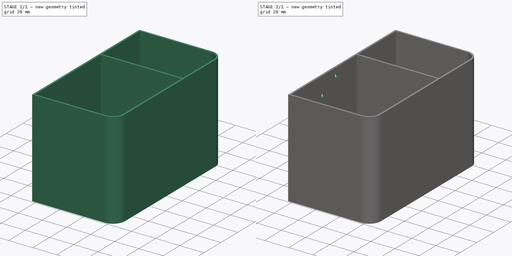
[diagram: build sequence overview — one tinted view per stage of 2, left to right]
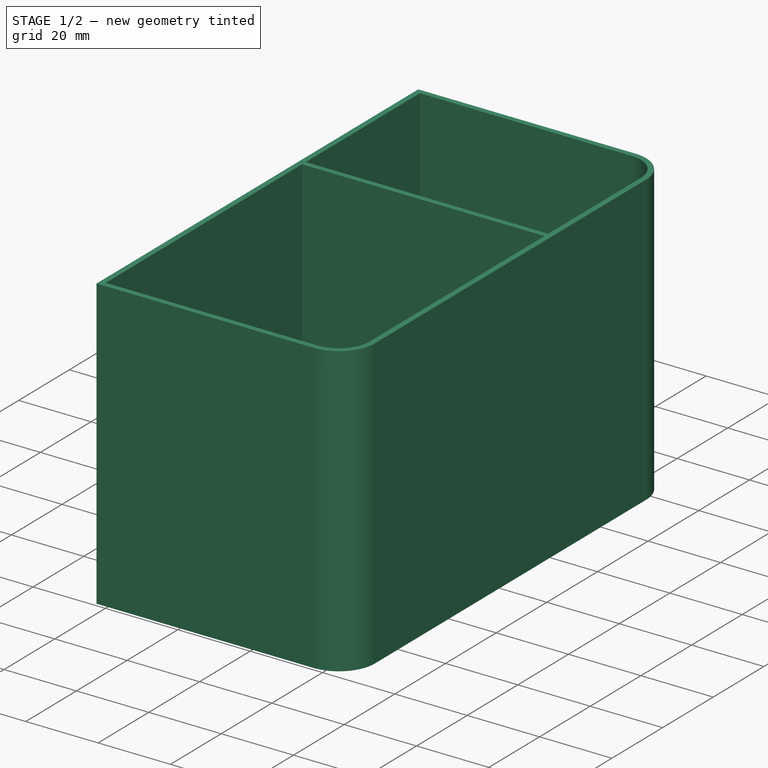
[diagram: stage 1 of 2 — iso view after this stage's code; geometry added in this stage tinted green]
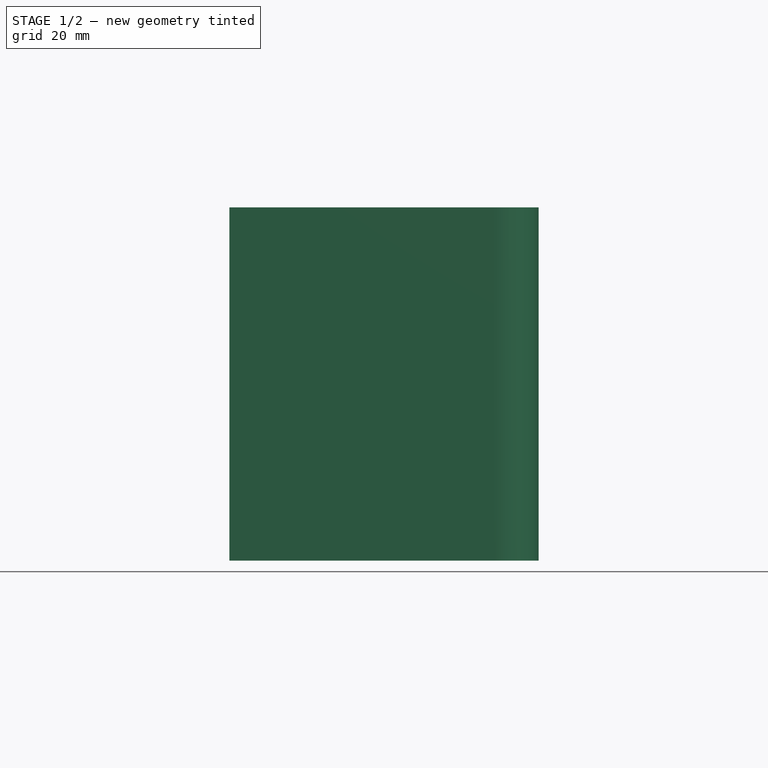
[diagram: stage 1 of 2 — front view after this stage's code; geometry added in this stage tinted green]
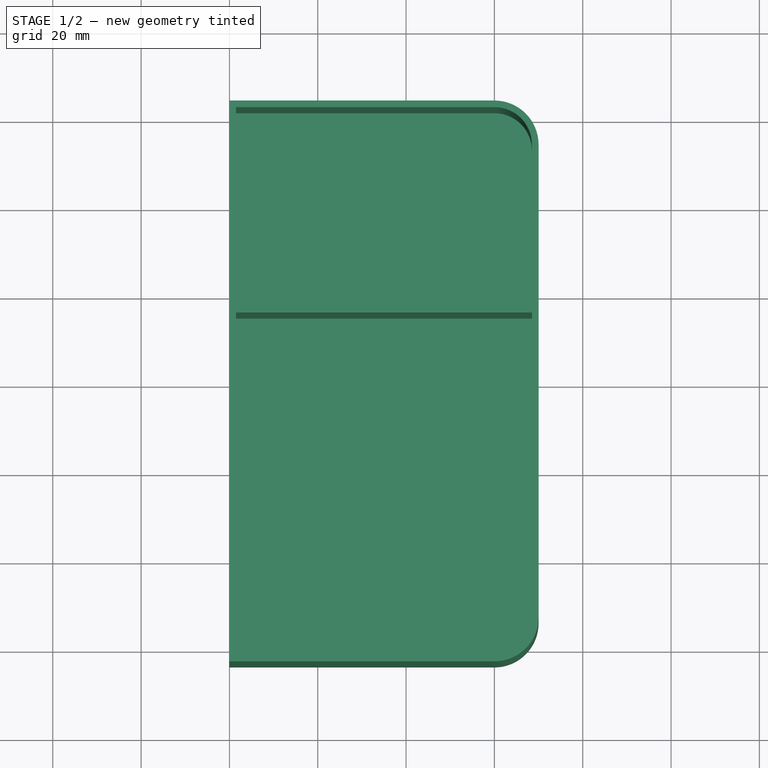
[diagram: stage 1 of 2 — top view after this stage's code; geometry added in this stage tinted green]
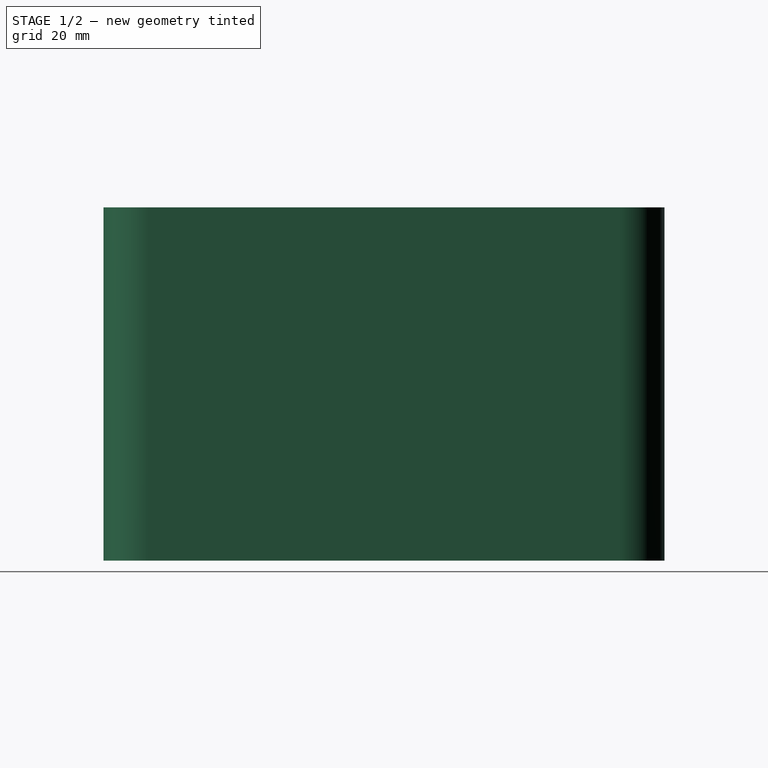
[diagram: stage 1 of 2 — right view after this stage's code; geometry added in this stage tinted green]
FCSTD DOCUMENT  (FreeCAD 0.19R24276 (Git))
Label: Yihua898D_Storage
License: All rights reserved
LicenseURL: http://en.wikipedia.org/wiki/All_rights_reserved
objects: Sketcher::SketchObject×3, PartDesign::Pocket×2, PartDesign::Pad×1, PartDesign::Body×1
note: 10 computed .brp shape members not serialized (recipe doc carries the construction recipe); baked Part::Feature solids carry a one-line shape summary decoded from their .brp

FEATURE [Sketcher::SketchObject] Sketch
  FullyConstrained = true
  MapMode = 5
  Support = -> [XY_Plane]
  sketch-geometry (8):
    g0: LineSegment StartX=0 StartY=63.5 StartZ=0 EndX=60 EndY=63.5 EndZ=0
    g1: LineSegment StartX=70 StartY=53.5 StartZ=0 EndX=70 EndY=-53.5 EndZ=0
    g2: LineSegment StartX=60 StartY=-63.5 StartZ=0 EndX=0 EndY=-63.5 EndZ=0
    g3: LineSegment StartX=0 StartY=-63.5 StartZ=0 EndX=0 EndY=63.5 EndZ=0
    g4: ArcOfCircle CenterX=60 CenterY=53.5 CenterZ=0 NormalX=0 NormalY=0 NormalZ=1 AngleXU=0 Radius=10 StartAngle=0 EndAngle=1.5708
    g5: ArcOfCircle CenterX=60 CenterY=-53.5 CenterZ=0 NormalX=0 NormalY=0 NormalZ=1 AngleXU=0 Radius=10 StartAngle=4.71239 EndAngle=6.28319
    g6: LineSegment StartX=60 StartY=53.5 StartZ=0 EndX=7.1e-15 EndY=0 EndZ=0
    g7: LineSegment StartX=7.1e-15 StartY=0 StartZ=0 EndX=60 EndY=-53.5 EndZ=0
  constraints (20):
    c: Coincident(g2,g3)
    c: Coincident(g3,g0)
    c: Horizontal(g0)
    c: Horizontal(g2)
    c: Vertical(g1)
    c: Vertical(g3)
    c: PointOnObject(g0,g-2)
    c: Tangent(g0,g4) = 1.5708
    c: Tangent(g1,g4) = 1.5708
    c: Tangent(g2,g5) = 1.5708
    c: Tangent(g1,g5) = 1.5708
    c: Radius(g5) = 10
    c: Equal(g5,g4)
    c: DistanceY(g3,g3) = 127
    c: DistanceX(g0,g1) = 70
    c: Coincident(g6,g4)
    c: Coincident(g6,g-1)
    c: Coincident(g6,g7)
    c: Coincident(g7,g5)
    c: Equal(g7,g6)
FEATURE [Sketcher::SketchObject] Sketch001
  AttachmentOffset = pos=(0,0,1) rot=(0,0,1;0rad)
  FullyConstrained = true
  MapMode = 5
  Placement = pos=(0,0,1) rot=(0,0,1;0rad)
  Support = -> [XY_Plane]
  sketch-geometry (22):
    g0: LineSegment StartX=0 StartY=63.5 StartZ=0 EndX=60 EndY=63.5 EndZ=0
    g1: LineSegment StartX=70 StartY=53.5 StartZ=0 EndX=70 EndY=-53.5 EndZ=0
    g2: LineSegment StartX=60 StartY=-63.5 StartZ=0 EndX=0 EndY=-63.5 EndZ=0
    g3: LineSegment StartX=0 StartY=-63.5 StartZ=0 EndX=0 EndY=63.5 EndZ=0
    g4: ArcOfCircle CenterX=60 CenterY=53.5 CenterZ=0 NormalX=0 NormalY=0 NormalZ=1 AngleXU=0 Radius=10 StartAngle=0 EndAngle=1.5708
    g5: ArcOfCircle CenterX=60 CenterY=-53.5 CenterZ=0 NormalX=0 NormalY=0 NormalZ=1 AngleXU=0 Radius=10 StartAngle=4.71239 EndAngle=6.28319
    g6: LineSegment StartX=60 StartY=53.5 StartZ=0 EndX=-7.1e-15 EndY=0 EndZ=0
    g7: LineSegment StartX=-7.1e-15 StartY=0 StartZ=0 EndX=60 EndY=-53.5 EndZ=0
    g8: LineSegment StartX=1.5 StartY=62 StartZ=0 EndX=60 EndY=62 EndZ=0
    g9: LineSegment StartX=68.5 StartY=53.5 StartZ=0 EndX=68.5 EndY=17 EndZ=0
    g10: LineSegment StartX=68.5 StartY=17 StartZ=0 EndX=1.5 EndY=17 EndZ=0
    g11: LineSegment StartX=1.5 StartY=17 StartZ=0 EndX=1.5 EndY=62 EndZ=0
    g12: ArcOfCircle CenterX=60 CenterY=53.5 CenterZ=0 NormalX=0 NormalY=0 NormalZ=1 AngleXU=0 Radius=8.5 StartAngle=0 EndAngle=1.5708
    g13: LineSegment StartX=1.5 StartY=62 StartZ=0 EndX=1.5 EndY=63.5 EndZ=0
    g14: LineSegment StartX=1.5 StartY=62 StartZ=0 EndX=0 EndY=62 EndZ=0
    g15: LineSegment StartX=68.5 StartY=17 StartZ=0 EndX=70 EndY=17 EndZ=0
    g16: LineSegment StartX=1.5 StartY=15.5 StartZ=0 EndX=68.5 EndY=15.5 EndZ=0
    g17: LineSegment StartX=68.5 StartY=15.5 StartZ=0 EndX=68.5 EndY=-53.5 EndZ=0
    g18: LineSegment StartX=60 StartY=-62 StartZ=0 EndX=1.5 EndY=-62 EndZ=0
    g19: LineSegment StartX=1.5 StartY=-62 StartZ=0 EndX=1.5 EndY=15.5 EndZ=0
    g20: ArcOfCircle CenterX=60 CenterY=-53.5 CenterZ=0 NormalX=0 NormalY=0 NormalZ=1 AngleXU=0 Radius=8.5 StartAngle=4.71239 EndAngle=6.28319
    g21: LineSegment StartX=1.5 StartY=15.5 StartZ=0 EndX=1.5 EndY=17 EndZ=0
  constraints (57):
    c: Coincident(g2,g3)
    c: Coincident(g3,g0)
    c: Horizontal(g0)
    c: Horizontal(g2)
    c: Vertical(g1)
    c: Vertical(g3)
    c: PointOnObject(g0,g-2)
    c: Tangent(g0,g4) = 1.5708
    c: Tangent(g1,g4) = 1.5708
    c: Tangent(g2,g5) = 1.5708
    c: Tangent(g1,g5) = 1.5708
    c: Radius(g5) = 10
    c: Equal(g5,g4)
    c: Coincident(g6,g4)
    c: Coincident(g6,g-1)
    c: Coincident(g6,g7)
    c: Coincident(g7,g5)
    c: Equal(g7,g6)
    c: DistanceY(g3,g3) = 127
    c: DistanceX(g0,g1) = 70
    c: Coincident(g9,g10)
    c: Coincident(g10,g11)
    c: Coincident(g11,g8)
    c: Horizontal(g8)
    c: Horizontal(g10)
    c: Vertical(g9)
    c: Vertical(g11)
    c: Tangent(g8,g12) = 1.5708
    c: Tangent(g9,g12) = 1.5708
    c: Coincident(g12,g4)
    c: Coincident(g8,g13)
    c: PointOnObject(g13,g0)
    c: Vertical(g13)
    c: Coincident(g8,g14)
    c: PointOnObject(g14,g3)
    c: Horizontal(g14)
    c: Coincident(g9,g15)
    c: PointOnObject(g15,g1)
    c: Equal(g15,g14)
    c: Equal(g14,g13)
    c: DistanceY(g8,g0) = 1.5
    c: DistanceY(g11,g11) = 45
    c: Horizontal(g16)
    c: Coincident(g16,g17)
    c: Vertical(g17)
    c: Horizontal(g18)
    c: Coincident(g18,g19)
    c: Coincident(g19,g16)
    c: Vertical(g19)
    c: Tangent(g18,g20) = 1.5708
    c: Tangent(g17,g20) = 1.5708
    c: Coincident(g20,g5)
    c: Equal(g20,g12)
    c: Coincident(g21,g16)
    c: Coincident(g21,g10)
    c: Vertical(g21)
    c: Equal(g21,g14)
FEATURE [PartDesign::Pad] Pad
  Direction = (1,1,1)
  Length = 80
  Length2 = 100
  Profile = -> Sketch
  Type = 0
FEATURE [PartDesign::Pocket] Pocket
  BaseFeature = -> Pad
  Length = 5
  Length2 = 100
  Profile = -> Sketch001
  Reversed = true
  Type = 1
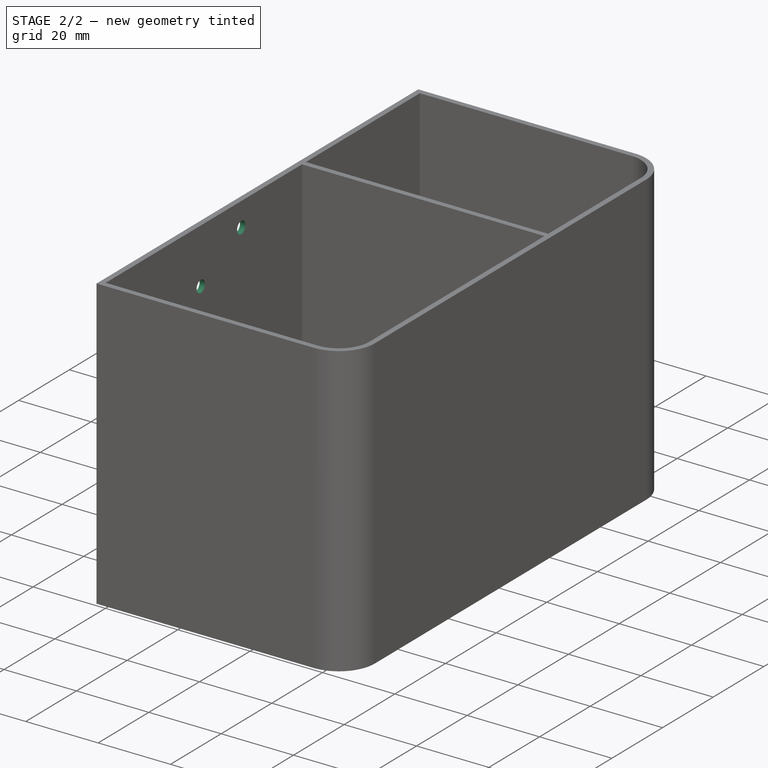
[diagram: stage 2 of 2 — iso view after this stage's code; geometry added in this stage tinted green]
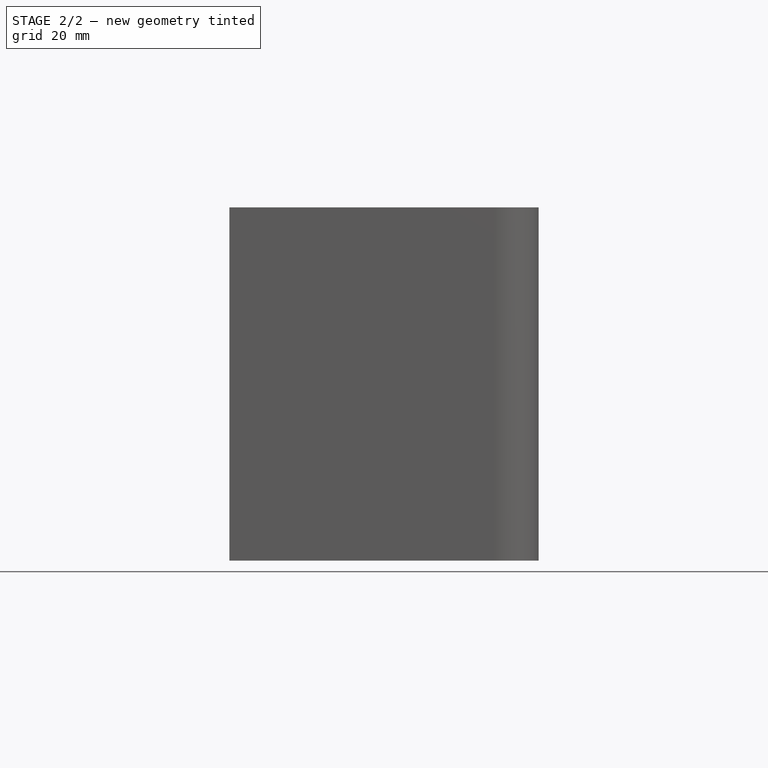
[diagram: stage 2 of 2 — front view after this stage's code; geometry added in this stage tinted green]
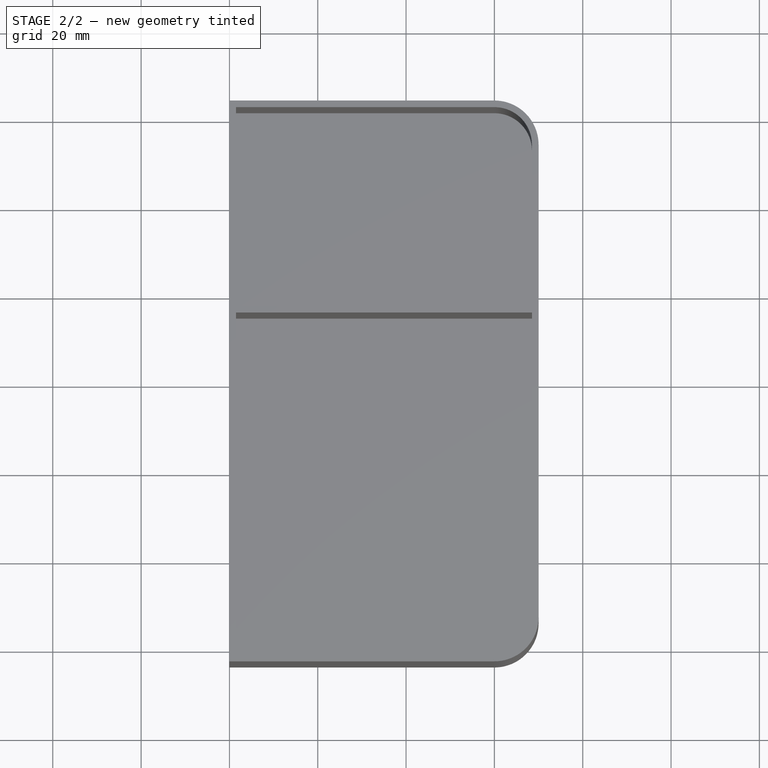
[diagram: stage 2 of 2 — top view after this stage's code; geometry added in this stage tinted green]
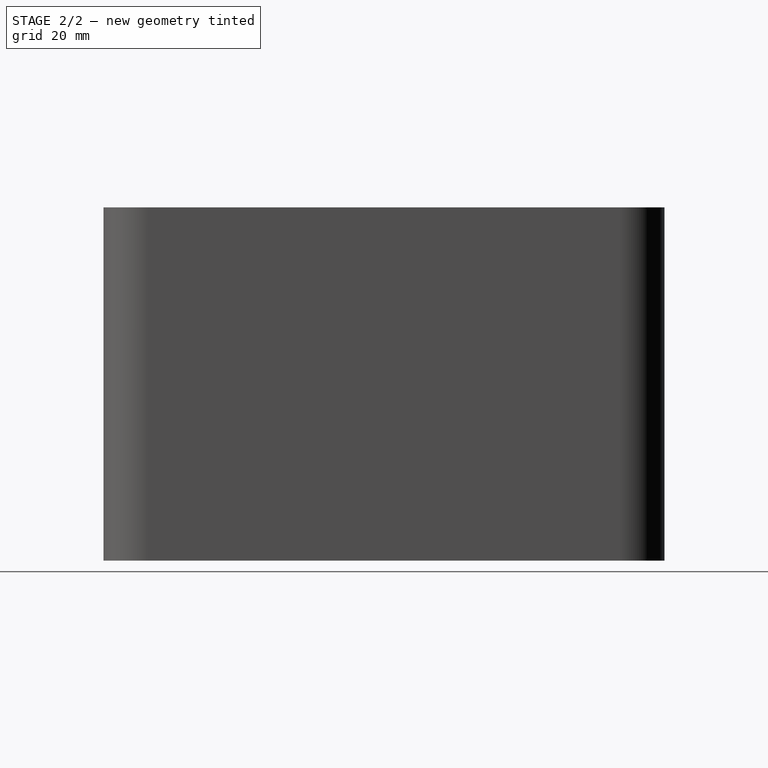
[diagram: stage 2 of 2 — right view after this stage's code; geometry added in this stage tinted green]
FEATURE [Sketcher::SketchObject] Sketch002
  FullyConstrained = true
  MapMode = 5
  Placement = pos=(0,0,0) rot=(-0.57735,0.57735,0.57735;4.18879rad)
  Support = -> [YZ_Plane]
  sketch-geometry (11):
    g0: LineSegment StartX=-50 StartY=5 StartZ=0 EndX=50 EndY=5 EndZ=0
    g1: LineSegment StartX=50 StartY=5 StartZ=0 EndX=0 EndY=0 EndZ=0
    g2: LineSegment StartX=0 StartY=0 StartZ=0 EndX=-50 EndY=5 EndZ=0
    g3: Circle CenterX=-50 CenterY=5 CenterZ=0 NormalX=0 NormalY=0 NormalZ=1 AngleXU=0 Radius=1.65
    g4: Circle CenterX=50 CenterY=5 CenterZ=0 NormalX=0 NormalY=0 NormalZ=1 AngleXU=0 Radius=1.65
    g5: LineSegment StartX=-50 StartY=5 StartZ=0 EndX=24.4763 EndY=64.7791 EndZ=0
    g6: LineSegment StartX=24.4763 StartY=64.7791 StartZ=0 EndX=50 EndY=5 EndZ=0
    g7: LineSegment StartX=50 StartY=5 StartZ=0 EndX=8.5 EndY=73.3941 EndZ=0
    g8: LineSegment StartX=8.5 StartY=73.3941 StartZ=0 EndX=-50 EndY=5 EndZ=0
    g9: Circle CenterX=8.5 CenterY=73.3941 CenterZ=0 NormalX=0 NormalY=0 NormalZ=1 AngleXU=0 Radius=1.65
    g10: Circle CenterX=24.4763 CenterY=64.7791 CenterZ=0 NormalX=0 NormalY=0 NormalZ=1 AngleXU=0 Radius=1.65
  constraints (26):
    c: Horizontal(g0)
    c: Coincident(g0,g1)
    c: Coincident(g1,g-1)
    c: Coincident(g1,g2)
    c: Coincident(g2,g0)
    c: Coincident(g3,g0)
    c: Coincident(g4,g0)
    c: Diameter(g4) = 3.3
    c: Equal(g4,g3)
    c: Equal(g1,g2)
    c: Coincident(g5,g3)
    c: Coincident(g5,g6)
    c: Coincident(g6,g4)
    c: Coincident(g6,g7)
    c: Coincident(g7,g8)
    c: Coincident(g8,g5)
    c: Distance(g5) = 95.5
    c: DistanceY(g-1,g3) = 5
    c: Distance(g6) = 65
    c: Distance(g8) = 90
    c: DistanceX(g0,g0) = 100
    c: Distance(g7) = 80
    c: Coincident(g9,g7)
    c: Coincident(g10,g5)
    c: Equal(g10,g9)
    c: Equal(g9,g3)
FEATURE [PartDesign::Pocket] Pocket001
  BaseFeature = -> Pocket
  Length = 5
  Length2 = 100
  Profile = -> Sketch002
  Type = 0
FEATURE [PartDesign::Body] Body
  Group = -> [Sketch,Sketch001,Pad,Pocket,Sketch002,Pocket001]
  Origin = -> Origin
  Tip = -> Pocket001
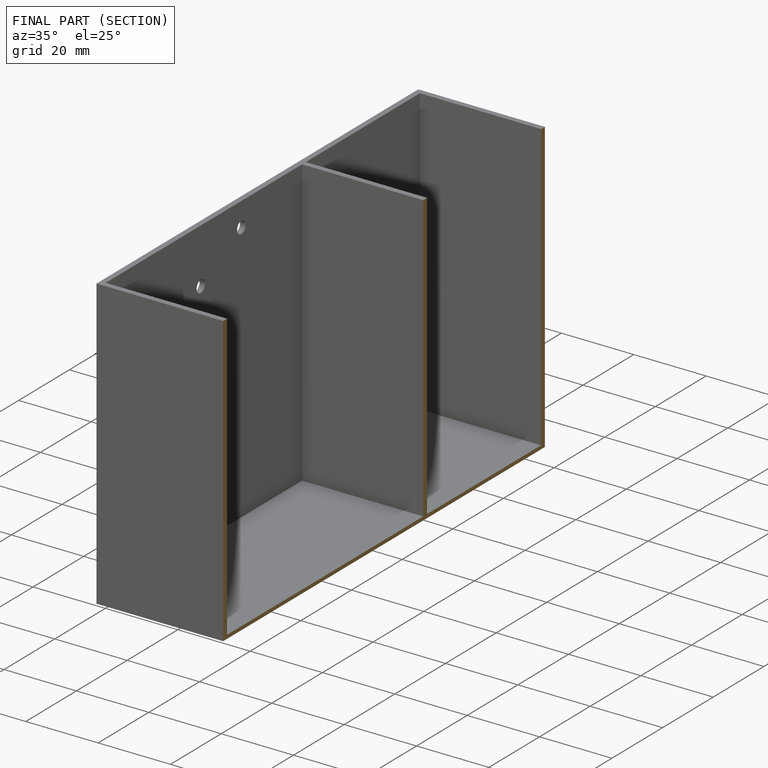
[diagram: finished part — half-section view (interior)]
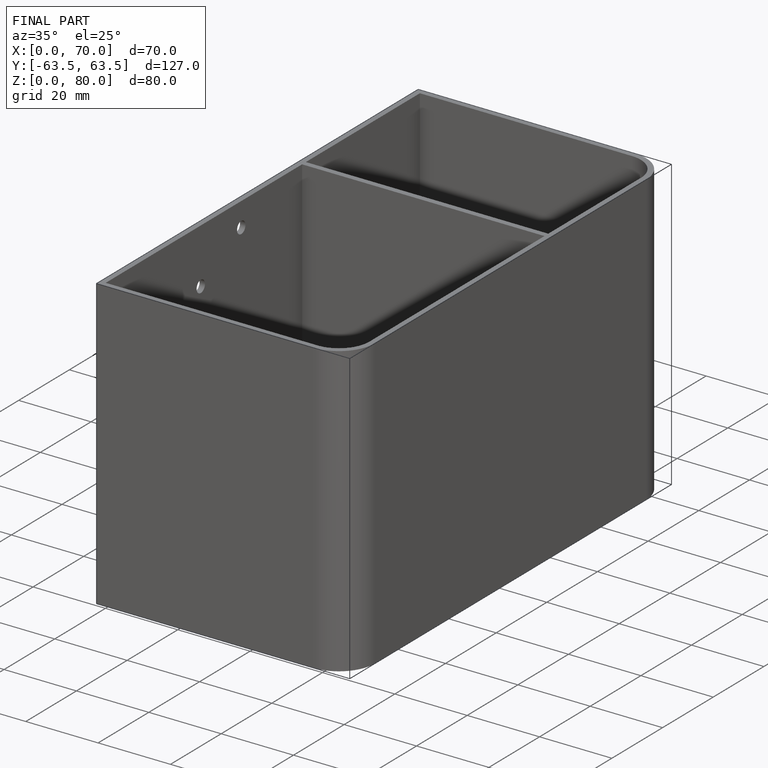
[diagram: finished part — iso view with bounding-box wireframe]
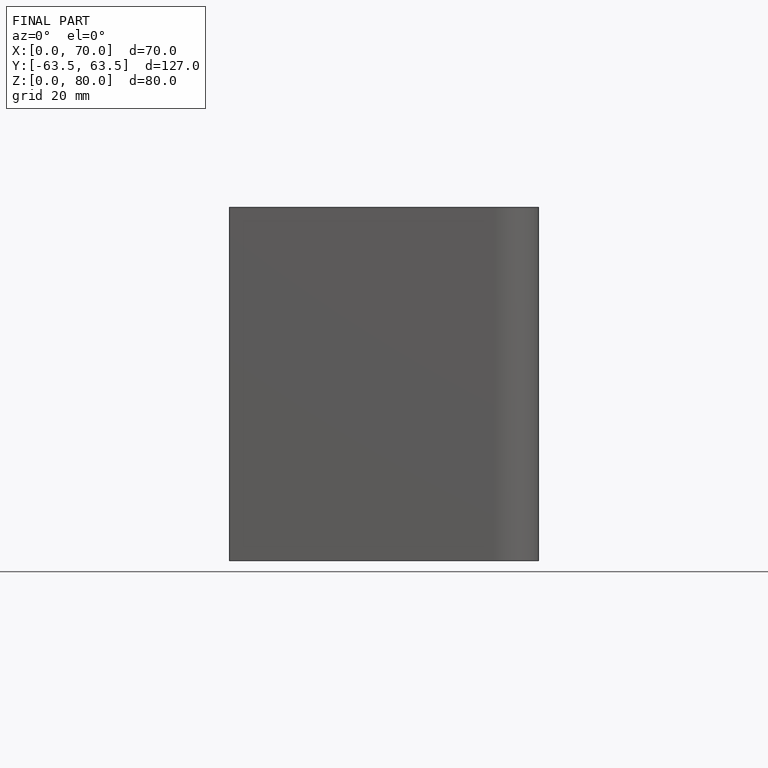
[diagram: finished part — front view with bounding-box wireframe]
